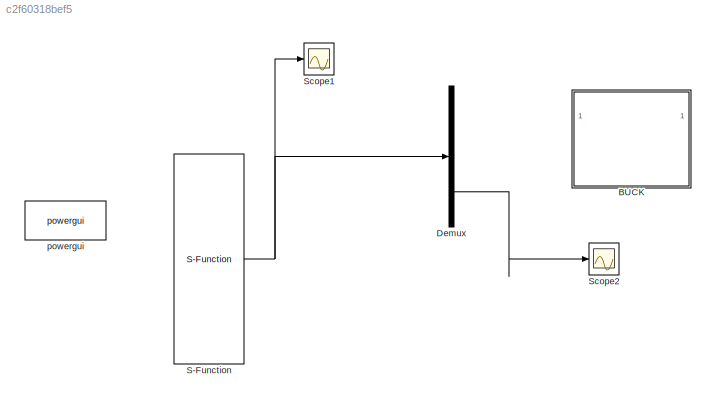
MODEL slx_c2f60318bef5
KIND model
CONFIG AbsTol = auto
CONFIG EnableMultiTasking = off
CONFIG FixedStep = 100e-9
CONFIG InitFcn = fw = 50*1e3;\nTs = 1/fw;\nCtrlAPP_m\nPowerParameterDefine
CONFIG MaxStep = 1/120e6
CONFIG MinStep = auto
CONFIG RelTol = 1e-3
CONFIG SampleTimeConstraint = Unconstrained
CONFIG SolverName = VariableStepDiscrete
CONFIG StartTime = 0.0
CONFIG StopTime = 0.12
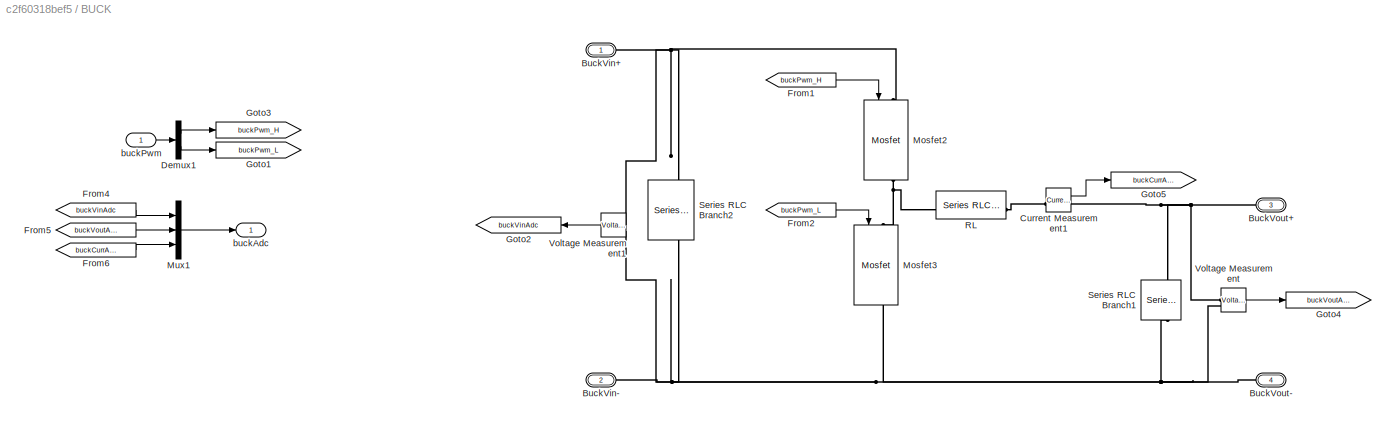
BLOCK [SubSystem] BUCK
  PortSchema = {"entries":[{"content":{"sides":[{"content":{"connectorIds":["LConn1","LConn2","In1"]},"type":"ConnectorPlacement.EquallySpacedRectSide","uuid":"82c15938-e24d-4a47-8f6d-18e9c4146b6b"},{"content":{"connectorIds":["RConn1","RConn2","Out1"],"side":"RIGHT"},"type":"ConnectorPlacement.EquallySpacedRectSide","uuid":"292e61d9-d8d8-4de9-a325-bcb0677255c0"},{"content":{"side":"TOP"},"type":"ConnectorPlacem...<+258ch>
BLOCK [PMIOPort] BUCK/BuckVin+
  Side = Left
BLOCK [PMIOPort] BUCK/BuckVin-
  Port = 2
  Side = Left
BLOCK [PMIOPort] BUCK/BuckVout+
  NameLocation = top
  Port = 3
  Side = Right
BLOCK [PMIOPort] BUCK/BuckVout-
  NameLocation = top
  Port = 4
  Side = Right
BLOCK [Reference] BUCK/Current Measurement1  REF=spsCurrentMeasurementLib/Current Measurement
  SourceBlock = spsCurrentMeasurementLib/Current Measurement
  SourceType = Current Measurement
  UserDataPersistent = on
BLOCK [Demux] BUCK/Demux1
  Outputs = 2
BLOCK [From] BUCK/From1
  GotoTag = buckPwm_H
  TagVisibility = global
BLOCK [From] BUCK/From2
  GotoTag = buckPwm_L
  TagVisibility = global
BLOCK [From] BUCK/From4
  GotoTag = buckVinAdc
  TagVisibility = global
BLOCK [From] BUCK/From5
  GotoTag = buckVoutAdc
  TagVisibility = global
BLOCK [From] BUCK/From6
  GotoTag = buckCurrAdc
  TagVisibility = global
BLOCK [Goto] BUCK/Goto1
  GotoTag = buckPwm_L
  TagVisibility = global
BLOCK [Goto] BUCK/Goto2
  GotoTag = buckVinAdc
  NameLocation = top
  TagVisibility = global
BLOCK [Goto] BUCK/Goto3
  GotoTag = buckPwm_H
  TagVisibility = global
BLOCK [Goto] BUCK/Goto4
  GotoTag = buckVoutAdc
  TagVisibility = global
BLOCK [Goto] BUCK/Goto5
  GotoTag = buckCurrAdc
  TagVisibility = global
BLOCK [Reference] BUCK/Mosfet2  REF=spsMosfetLib/Mosfet
  LibrarySourceBlock = sps_lib/Power Electronics/Mosfet
  NameLocation = left
  SourceBlock = spsMosfetLib/Mosfet
  SourceType = Mosfet
BLOCK [Reference] BUCK/Mosfet3  REF=spsMosfetLib/Mosfet
  LibrarySourceBlock = sps_lib/Power Electronics/Mosfet
  NameLocation = left
  SourceBlock = spsMosfetLib/Mosfet
  SourceType = Mosfet
BLOCK [Mux] BUCK/Mux1
  DisplayOption = bar
  Inputs = 3
BLOCK [Reference] BUCK/RL  REF=spsSeriesRLCBranchLib/Series RLC Branch
  LibrarySourceBlock = sps_lib/Passives/Series RLC Branch
  SourceBlock = spsSeriesRLCBranchLib/Series RLC Branch
  SourceType = Series RLC Branch
BLOCK [Reference] BUCK/Series RLC Branch1  REF=spsSeriesRLCBranchLib/Series RLC Branch
  LibrarySourceBlock = sps_lib/Passives/Series RLC Branch
  NameLocation = left
  SourceBlock = spsSeriesRLCBranchLib/Series RLC Branch
  SourceType = Series RLC Branch
BLOCK [Reference] BUCK/Series RLC Branch2  REF=spsSeriesRLCBranchLib/Series RLC Branch
  LibrarySourceBlock = sps_lib/Passives/Series RLC Branch
  NameLocation = left
  SourceBlock = spsSeriesRLCBranchLib/Series RLC Branch
  SourceType = Series RLC Branch
BLOCK [Reference] BUCK/Voltage Measurement  REF=spsVoltageMeasurementLib/Voltage Measurement
  LibrarySourceBlock = sps_lib/Sensors and Measurements/Voltage Measurement
  SourceBlock = spsVoltageMeasurementLib/Voltage Measurement
  SourceType = Voltage Measurement
  UserDataPersistent = on
BLOCK [Reference] BUCK/Voltage Measurement1  REF=spsVoltageMeasurementLib/Voltage Measurement
  LibrarySourceBlock = sps_lib/Sensors and Measurements/Voltage Measurement
  SourceBlock = spsVoltageMeasurementLib/Voltage Measurement
  SourceType = Voltage Measurement
  UserDataPersistent = on
BLOCK [Outport] BUCK/buckAdc
BLOCK [Inport] BUCK/buckPwm
BLOCK [Demux] Demux
BLOCK [S-Function] S-Function
  EnableBusSupport = off
  FunctionName = CtrlAPP
  SFcnIsStateOwnerBlock = off
  SFunctionDeploymentMode = off
BLOCK [Scope] Scope1
  Floating = off
  NumInputPorts = 1
  ScopeSpecificationString = Simulink.scopes.TimeScopeBlockCfg('CurrentConfiguration', extmgr.ConfigurationSet(extmgr.Configuration('Core','General UI',true),extmgr.Configuration('Core','Source UI',true),extmgr.Configuration('Sources','WiredSimulink',true,'DataLoggingVariableName','ScopeData1'),extmgr.Configuration('Visuals','Time Domain',true,'SerializedDisplays',{struct('MinYLimReal','0.13915','MaxYLimReal','0.97248','YLabe...<+2165ch>
BLOCK [Scope] Scope2
  Floating = off
  NumInputPorts = 1
  ScopeSpecificationString = Simulink.scopes.TimeScopeBlockCfg('CurrentConfiguration', extmgr.ConfigurationSet(extmgr.Configuration('Core','General UI',true),extmgr.Configuration('Core','Source UI',true),extmgr.Configuration('Sources','WiredSimulink',true,'DataLoggingVariableName','ScopeData1'),extmgr.Configuration('Visuals','Time Domain',true,'SerializedDisplays',{struct('MinYLimReal','-1800000.00000','MaxYLimReal','16200000...<+2103ch>
BLOCK [Reference] powergui  REF=sps_lib/powergui
  LibrarySourceBlock = sps_lib/powergui
  Priority = 1
  SourceBlock = sps_lib/powergui
  SourceType = PSB option menu block
LINE BUCK/Current Measurement1:1 -> BUCK/Goto5:1
LINE BUCK/Demux1:1 -> BUCK/Goto3:1
LINE BUCK/Demux1:2 -> BUCK/Goto1:1
LINE BUCK/From1:1 -> BUCK/Mosfet2:1
LINE BUCK/From2:1 -> BUCK/Mosfet3:1
LINE BUCK/From4:1 -> BUCK/Mux1:1
LINE BUCK/From5:1 -> BUCK/Mux1:2
LINE BUCK/From6:1 -> BUCK/Mux1:3
LINE BUCK/Mux1:1 -> BUCK/buckAdc:1
LINE BUCK/Voltage Measurement1:1 -> BUCK/Goto2:1
LINE BUCK/Voltage Measurement:1 -> BUCK/Goto4:1
LINE BUCK/buckPwm:1 -> BUCK/Demux1:1
LINE Demux:3 -> Scope2:1
NET S-Function:1 -> Demux:1, Scope1:1
PNET net1: BUCK/BuckVin+:RConn1 -- BUCK/Mosfet2:LConn1 -- BUCK/Series RLC Branch2:LConn1 -- BUCK/Voltage Measurement1:LConn1
PNET net2: BUCK/BuckVin-:RConn1 -- BUCK/BuckVout-:RConn1 -- BUCK/Mosfet3:RConn1 -- BUCK/Series RLC Branch1:RConn1 -- BUCK/Series RLC Branch2:RConn1 -- BUCK/Voltage Measurement1:LConn2 -- BUCK/Voltage Measurement:LConn2
PNET net3: BUCK/BuckVout+:RConn1 -- BUCK/Current Measurement1:RConn1 -- BUCK/Series RLC Branch1:LConn1 -- BUCK/Voltage Measurement:LConn1
PLINE BUCK/Current Measurement1:LConn1 -- BUCK/RL:RConn1
PNET net4: BUCK/Mosfet2:RConn1 -- BUCK/Mosfet3:LConn1 -- BUCK/RL:LConn1
note: NET lines group one-source signal fan-out (src -> all destinations, sorted); 1:1 wires keep LINE; PNET lines group multi-terminal physical nets as a canonical sorted terminal list (undirected conserving connections); 2-terminal nets keep the pairwise PLINE form
